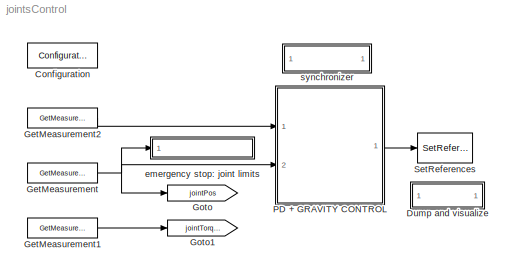
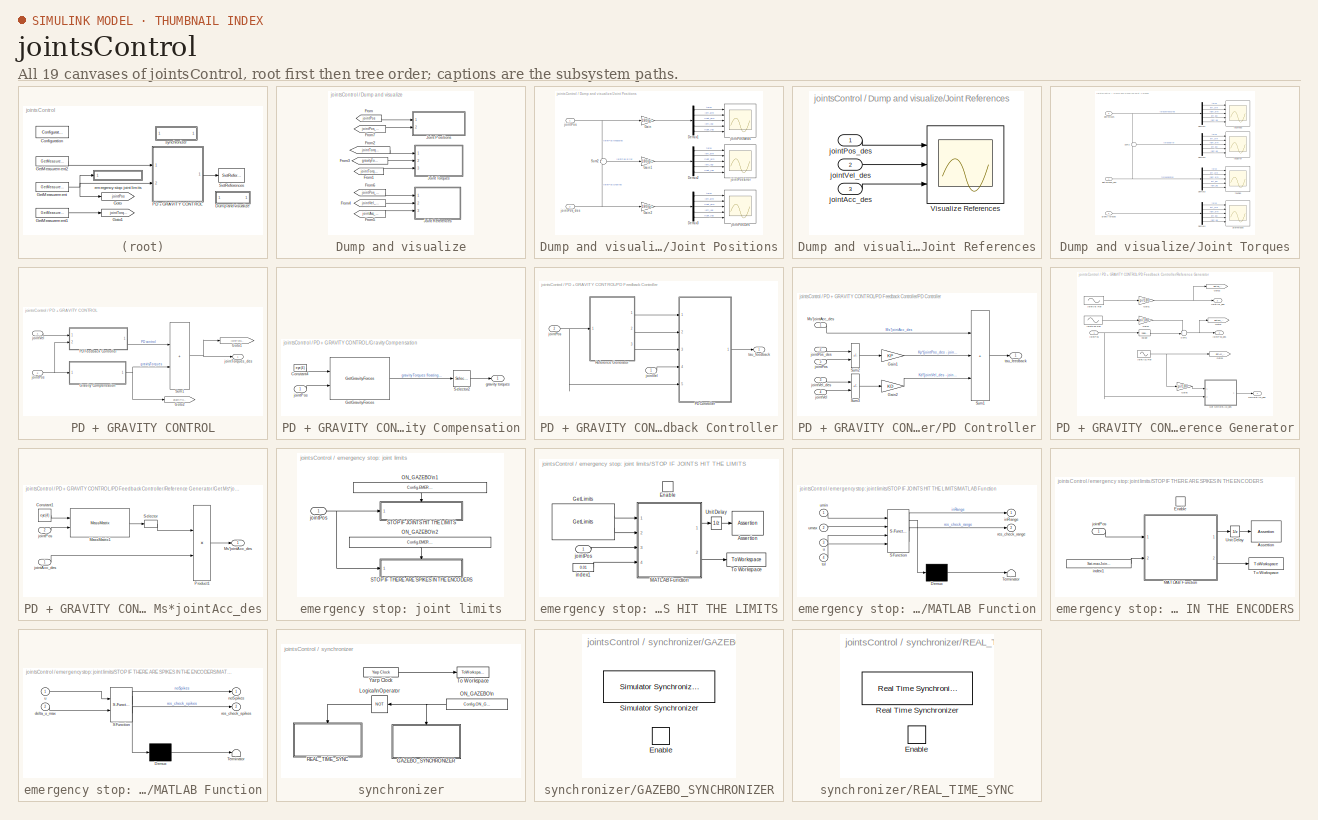
[diagram: thumbnail index - all 19 canvases of the model, root first then tree order]
MODEL jointsControl
KIND model
CONFIG InitFcn = %% initialize the simulation\ncd(fileparts(which(bdroot)));\ninitJointsControl;\n\n%% Try to edit the GUI (the user may have already closed it)\ntry\n\n    %% Update Start Button\n    set(sl_synch_handles.startButton,'Backgroundcolor',[0.0,1.0,0.0]);\n    set(sl_synch_handles.startButton,'Enable','on');\n\nend
CONFIG PostLoadFcn = %% Try to open the static GUI\ntry\n\n    staticGUI = simulinkStaticGUI;\n\nend
CONFIG StartFcn = %% Try to edit the GUI (the user may have already closed it)\ntry\n\n    %% Update Start Button\n    set(sl_synch_handles.startButton,'Backgroundcolor',[0.8,0.8,0.8]);\n    set(sl_synch_handles.startButton,'Enable','off');\n\n    %% Update Compile Button\n    set(sl_synch_handles.compileButton,'Backgroundcolor',[0.8,0.8,0.8]);\n    set(sl_synch_handles.compileButton,'Enable','off');\n\n    %% Upda...<+146ch>
CONFIG StopFcn = %% stop the simulation\ncd(fileparts(which(bdroot)));\nstopJointsControl;\n\n%% Try to edit the GUI (the user may have already closed it)\ntry\n\n    %% Update Start Button\n    if get(sl_synch_handles.checkbox_recompile, 'Value')  \n        set(sl_synch_handles.startButton,'Backgroundcolor',[0.0,1.0,0.0]);\n        set(sl_synch_handles.startButton,'Enable','on');\n    end\n\n    %% Update Compile...<+297ch>
BLOCK [Reference] Configuration  REF=WBToolboxLibrary/Utilities/Configuration
  ConfigObject = 'WBTConfigRobot'
  ConfigSource = Workspace
  ControlBoardsNames = {'left_arm','right_arm','torso'}
  ControlledJoints = {'l_elbow','l_shoulder_pitch','torso_roll'}
  GravityVector = [0,0,-9.81]
  LocalName = 'WBT'
  Ports = []
  RTWMemSecDataConstants = Inherit from model
  RTWMemSecDataInternal = Inherit from model
  RTWMemSecDataParameters = Inherit from model
  RTWMemSecFuncExecute = Inherit from model
  RTWMemSecFuncInitTerm = Inherit from model
  RobotName = 'icubSim'
  SID = 432
  SourceBlock = WBToolboxLibrary/Utilities/Configuration
  SourceProductName = WholeBodyToolbox
  UrdfFile = 'model.urdf'
BLOCK [SubSystem] Dump and visualize
  Ports = []
  RequestExecContextInheritance = off
  SID = 504
BLOCK [From] Dump and visualize/From
  GotoTag = jointPos
  SID = 615
  TagVisibility = global
BLOCK [From] Dump and visualize/From1
  GotoTag = jointTorques
  SID = 617
  TagVisibility = global
BLOCK [From] Dump and visualize/From2
  GotoTag = jointTorques_des
  SID = 620
  TagVisibility = global
BLOCK [From] Dump and visualize/From3
  GotoTag = gravityTorques
  SID = 623
  TagVisibility = global
BLOCK [From] Dump and visualize/From4
  GotoTag = jointVel_des
  SID = 628
  TagVisibility = global
BLOCK [From] Dump and visualize/From5
  GotoTag = jointAcc_des
  SID = 629
  TagVisibility = global
BLOCK [From] Dump and visualize/From6
  GotoTag = jointPos_des
  SID = 630
  TagVisibility = global
BLOCK [From] Dump and visualize/From7
  GotoTag = jointPos_des
  SID = 646
  TagVisibility = global
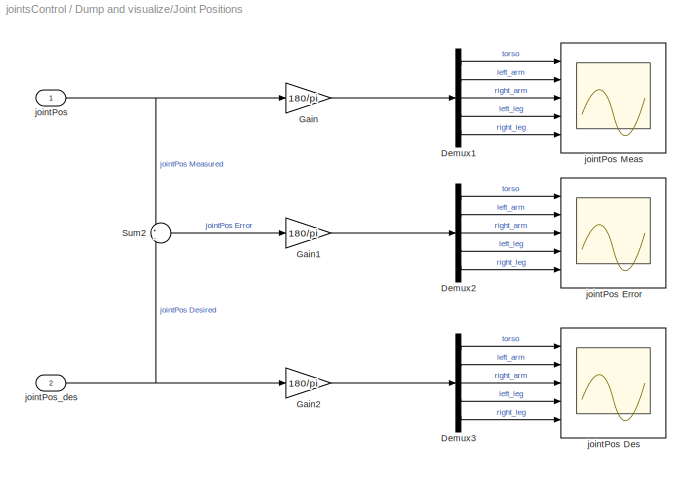
BLOCK [SubSystem] Dump and visualize/Joint Positions
  Ports = [2]
  RequestExecContextInheritance = off
  SID = 443
BLOCK [Demux] Dump and visualize/Joint Positions/Demux1
  Outputs = Config.numOfJointsForEachControlboard
  Ports = [1, 5]
  SID = 467
BLOCK [Demux] Dump and visualize/Joint Positions/Demux2
  Outputs = Config.numOfJointsForEachControlboard
  Ports = [1, 5]
  SID = 468
BLOCK [Demux] Dump and visualize/Joint Positions/Demux3
  Outputs = Config.numOfJointsForEachControlboard
  Ports = [1, 5]
  SID = 469
BLOCK [Gain] Dump and visualize/Joint Positions/Gain
  Gain = 180/pi
  SID = 456
BLOCK [Gain] Dump and visualize/Joint Positions/Gain1
  Gain = 180/pi
  SID = 457
BLOCK [Gain] Dump and visualize/Joint Positions/Gain2
  Gain = 180/pi
  SID = 458
BLOCK [Sum] Dump and visualize/Joint Positions/Sum2
  Inputs = +|-
  Ports = [2, 1]
  SID = 451
BLOCK [Inport] Dump and visualize/Joint Positions/jointPos
  SID = 496
BLOCK [Scope] Dump and visualize/Joint Positions/jointPos Des
  Floating = off
  NumInputPorts = 5
  Ports = [5]
  SID = 453
  ScopeSpecificationString = Simulink.scopes.TimeScopeBlockCfg('CurrentConfiguration', extmgr.ConfigurationSet(extmgr.Configuration('Core','General UI',true,'FigureColor',[0.156862745098039 0.156862745098039 0.156862745098039]),extmgr.Configuration('Core','Source UI',true),extmgr.Configuration('Sources','WiredSimulink',true,'DataLogging',true,'DataLoggingVariableName','jointPos_Desired_DATA','DataLoggingSaveFormat','Structure...<+10772ch>
BLOCK [Scope] Dump and visualize/Joint Positions/jointPos Error
  Floating = off
  NumInputPorts = 5
  Ports = [5]
  SID = 454
  ScopeSpecificationString = Simulink.scopes.TimeScopeBlockCfg('CurrentConfiguration', extmgr.ConfigurationSet(extmgr.Configuration('Core','General UI',true,'FigureColor',[0.156862745098039 0.156862745098039 0.156862745098039]),extmgr.Configuration('Core','Source UI',true),extmgr.Configuration('Sources','WiredSimulink',true,'DataLogging',true,'DataLoggingVariableName','jointPos_Error_DATA','DataLoggingSaveFormat','StructureWi...<+10766ch>
BLOCK [Scope] Dump and visualize/Joint Positions/jointPos Meas
  Floating = off
  NumInputPorts = 5
  Ports = [5]
  SID = 455
  ScopeSpecificationString = Simulink.scopes.TimeScopeBlockCfg('CurrentConfiguration', extmgr.ConfigurationSet(extmgr.Configuration('Core','General UI',true,'FigureColor',[0.156862745098039 0.156862745098039 0.156862745098039]),extmgr.Configuration('Core','Source UI',true),extmgr.Configuration('Sources','WiredSimulink',true,'DataLogging',true,'DataLoggingVariableName','jointPos_DATA','DataLoggingSaveFormat','StructureWithTime...<+10766ch>
BLOCK [Inport] Dump and visualize/Joint Positions/jointPos_des
  Port = 2
  SID = 444
BLOCK [SubSystem] Dump and visualize/Joint References
  Ports = [3]
  RequestExecContextInheritance = off
  SID = 633
BLOCK [Scope] Dump and visualize/Joint References/Visualize References
  Floating = off
  NumInputPorts = 3
  Ports = [3]
  SID = 399
  ScopeSpecificationString = Simulink.scopes.TimeScopeBlockCfg('CurrentConfiguration', extmgr.ConfigurationSet(extmgr.Configuration('Core','General UI',true),extmgr.Configuration('Core','Source UI',true),extmgr.Configuration('Sources','WiredSimulink',true,'DataLoggingVariableName','jointReferences_DATA','DataLoggingSaveFormat','StructureWithTime','DataLoggingDecimation','1','DataLoggingDecimateData',true,'DataLogging',true),e...<+3135ch>
BLOCK [Inport] Dump and visualize/Joint References/jointAcc_des
  Port = 3
  SID = 636
BLOCK [Inport] Dump and visualize/Joint References/jointPos_des
  SID = 634
BLOCK [Inport] Dump and visualize/Joint References/jointVel_des
  Port = 2
  SID = 635
BLOCK [SubSystem] Dump and visualize/Joint Torques
  Ports = [3]
  RequestExecContextInheritance = off
  SID = 315
BLOCK [Demux] Dump and visualize/Joint Torques/Demux1
  Outputs = Config.numOfJointsForEachControlboard
  Ports = [1, 5]
  SID = 463
BLOCK [Demux] Dump and visualize/Joint Torques/Demux2
  Outputs = Config.numOfJointsForEachControlboard
  Ports = [1, 5]
  SID = 464
BLOCK [Demux] Dump and visualize/Joint Torques/Demux3
  Outputs = Config.numOfJointsForEachControlboard
  Ports = [1, 5]
  SID = 465
BLOCK [Demux] Dump and visualize/Joint Torques/Demux4
  Outputs = Config.numOfJointsForEachControlboard
  Ports = [1, 5]
  SID = 466
BLOCK [Sum] Dump and visualize/Joint Torques/Sum2
  Inputs = +|-
  Ports = [2, 1]
  SID = 49
BLOCK [Scope] Dump and visualize/Joint Torques/gravTorques
  Floating = off
  NumInputPorts = 5
  Ports = [5]
  SID = 419
  ScopeSpecificationString = Simulink.scopes.TimeScopeBlockCfg('CurrentConfiguration', extmgr.ConfigurationSet(extmgr.Configuration('Core','General UI',true,'FigureColor',[0.156862745098039 0.156862745098039 0.156862745098039]),extmgr.Configuration('Core','Source UI',true),extmgr.Configuration('Sources','WiredSimulink',true,'DataLoggingVariableName','gravTorque_DATA','DataLoggingSaveFormat','StructureWithTime','DataLoggingDec...<+10762ch>
BLOCK [Inport] Dump and visualize/Joint Torques/gravity torques
  Port = 2
  SID = 319
BLOCK [Inport] Dump and visualize/Joint Torques/jointTorques
  Port = 3
  SID = 495
BLOCK [Inport] Dump and visualize/Joint Torques/jointTorques_des
  SID = 318
BLOCK [Scope] Dump and visualize/Joint Torques/tauDes
  Floating = off
  NumInputPorts = 5
  Ports = [5]
  SID = 417
  ScopeSpecificationString = Simulink.scopes.TimeScopeBlockCfg('CurrentConfiguration', extmgr.ConfigurationSet(extmgr.Configuration('Core','General UI',true,'FigureColor',[0.156862745098039 0.156862745098039 0.156862745098039]),extmgr.Configuration('Core','Source UI',true),extmgr.Configuration('Sources','WiredSimulink',true,'DataLogging',true,'DataLoggingVariableName','tauDesired_DATA','DataLoggingSaveFormat','StructureWithTi...<+10762ch>
BLOCK [Scope] Dump and visualize/Joint Torques/tauError
  Floating = off
  NumInputPorts = 5
  Ports = [5]
  SID = 415
  ScopeSpecificationString = Simulink.scopes.TimeScopeBlockCfg('CurrentConfiguration', extmgr.ConfigurationSet(extmgr.Configuration('Core','General UI',true,'FigureColor',[0.156862745098039 0.156862745098039 0.156862745098039]),extmgr.Configuration('Core','Source UI',true),extmgr.Configuration('Sources','WiredSimulink',true,'DataLogging',true,'DataLoggingVariableName','tauError_DATA','DataLoggingSaveFormat','StructureWithTime...<+10760ch>
BLOCK [Scope] Dump and visualize/Joint Torques/tauMeas
  Floating = off
  NumInputPorts = 5
  Ports = [5]
  SID = 413
  ScopeSpecificationString = Simulink.scopes.TimeScopeBlockCfg('CurrentConfiguration', extmgr.ConfigurationSet(extmgr.Configuration('Core','General UI',true,'FigureColor',[0.156862745098039 0.156862745098039 0.156862745098039]),extmgr.Configuration('Core','Source UI',true),extmgr.Configuration('Sources','WiredSimulink',true,'DataLogging',true,'DataLoggingVariableName','tauMeasured_DATA','DataLoggingSaveFormat','StructureWithT...<+10763ch>
BLOCK [Reference] GetMeasurement  REF=WBToolboxLibrary/States/GetMeasurement
  Ports = [0, 1]
  RTWMemSecDataConstants = Inherit from model
  RTWMemSecDataInternal = Inherit from model
  RTWMemSecDataParameters = Inherit from model
  RTWMemSecFuncExecute = Inherit from model
  RTWMemSecFuncInitTerm = Inherit from model
  SID = 431
  SourceBlock = WBToolboxLibrary/States/GetMeasurement
  SourceProductName = WholeBodyToolbox
  SourceType = GetMeasurement
  measuredType = Joints Position
BLOCK [Reference] GetMeasurement1  REF=WBToolboxLibrary/States/GetMeasurement
  Ports = [0, 1]
  RTWMemSecDataConstants = Inherit from model
  RTWMemSecDataInternal = Inherit from model
  RTWMemSecDataParameters = Inherit from model
  RTWMemSecFuncExecute = Inherit from model
  RTWMemSecFuncInitTerm = Inherit from model
  SID = 434
  SourceBlock = WBToolboxLibrary/States/GetMeasurement
  SourceProductName = WholeBodyToolbox
  SourceType = GetMeasurement
  measuredType = Joints Torque
BLOCK [Reference] GetMeasurement2  REF=WBToolboxLibrary/States/GetMeasurement
  Ports = [0, 1]
  RTWMemSecDataConstants = Inherit from model
  RTWMemSecDataInternal = Inherit from model
  RTWMemSecDataParameters = Inherit from model
  RTWMemSecFuncExecute = Inherit from model
  RTWMemSecFuncInitTerm = Inherit from model
  SID = 433
  SourceBlock = WBToolboxLibrary/States/GetMeasurement
  SourceProductName = WholeBodyToolbox
  SourceType = GetMeasurement
  measuredType = Joints Velocity
BLOCK [Goto] Goto
  GotoTag = jointPos
  SID = 614
  TagVisibility = global
BLOCK [Goto] Goto1
  GotoTag = jointTorques
  SID = 616
  TagVisibility = global
BLOCK [SubSystem] PD + GRAVITY CONTROL
  Ports = [2, 1]
  RequestExecContextInheritance = off
  SID = 498
BLOCK [Goto] PD + GRAVITY CONTROL/Goto1
  GotoTag = jointTorques_des
  SID = 619
  TagVisibility = global
BLOCK [Goto] PD + GRAVITY CONTROL/Goto2
  GotoTag = gravityTorques
  SID = 622
  TagVisibility = global
BLOCK [SubSystem] PD + GRAVITY CONTROL/Gravity Compensation
  Ports = [1, 1]
  RequestExecContextInheritance = off
  SID = 226
BLOCK [Constant] PD + GRAVITY CONTROL/Gravity Compensation/Constant4
  SID = 425
  Value = eye(4)
BLOCK [Reference] PD + GRAVITY CONTROL/Gravity Compensation/GetGravityForces  REF=WBToolboxLibrary/Model/Dynamics/GetGravityForces
  Ports = [2, 1]
  RTWMemSecDataConstants = Inherit from model
  RTWMemSecDataInternal = Inherit from model
  RTWMemSecDataParameters = Inherit from model
  RTWMemSecFuncExecute = Inherit from model
  RTWMemSecFuncInitTerm = Inherit from model
  SID = 430
  SourceBlock = WBToolboxLibrary/Model/Dynamics/GetGravityForces
  SourceProductName = WholeBodyToolbox
  SourceType = Gravity bias
BLOCK [Selector] PD + GRAVITY CONTROL/Gravity Compensation/Selector2
  IndexOptions = Index vector (dialog)
  Indices = [7:ROBOT_DOF+6]
  InputPortWidth = ROBOT_DOF+6
  OutputSizes = 1
  Ports = [1, 1]
  SID = 428
BLOCK [Outport] PD + GRAVITY CONTROL/Gravity Compensation/gravity torques
  SID = 429
  VectorParamsAs1DForOutWhenUnconnected = off
BLOCK [Inport] PD + GRAVITY CONTROL/Gravity Compensation/jointPos
  SID = 423
BLOCK [SubSystem] PD + GRAVITY CONTROL/PD Feedback Controller
  Ports = [2, 1]
  RequestExecContextInheritance = off
  SID = 310
BLOCK [SubSystem] PD + GRAVITY CONTROL/PD Feedback Controller/PD Controller
  Ports = [5, 1]
  RequestExecContextInheritance = off
  SID = 637
BLOCK [Gain] PD + GRAVITY CONTROL/PD Feedback Controller/PD Controller/Gain1
  Gain = KP
  Multiplication = Matrix(K*u)
  SID = 14
BLOCK [Gain] PD + GRAVITY CONTROL/PD Feedback Controller/PD Controller/Gain2
  Gain = KD
  Multiplication = Matrix(K*u)
  SID = 20
BLOCK [Inport] PD + GRAVITY CONTROL/PD Feedback Controller/PD Controller/Ms*jointAcc_des
  SID = 641
BLOCK [Sum] PD + GRAVITY CONTROL/PD Feedback Controller/PD Controller/Sum1
  IconShape = rectangular
  Inputs = +++
  Ports = [3, 1]
  SID = 19
BLOCK [Sum] PD + GRAVITY CONTROL/PD Feedback Controller/PD Controller/Sum2
  IconShape = rectangular
  Inputs = +-
  Ports = [2, 1]
  SID = 644
BLOCK [Sum] PD + GRAVITY CONTROL/PD Feedback Controller/PD Controller/Sum3
  IconShape = rectangular
  Inputs = +-
  Ports = [2, 1]
  SID = 645
BLOCK [Inport] PD + GRAVITY CONTROL/PD Feedback Controller/PD Controller/jointPos
  Port = 5
  SID = 639
BLOCK [Inport] PD + GRAVITY CONTROL/PD Feedback Controller/PD Controller/jointPos_des
  Port = 2
  SID = 643
BLOCK [Inport] PD + GRAVITY CONTROL/PD Feedback Controller/PD Controller/jointVel
  Port = 4
  SID = 638
BLOCK [Inport] PD + GRAVITY CONTROL/PD Feedback Controller/PD Controller/jointVel_des
  Port = 3
  SID = 642
BLOCK [Outport] PD + GRAVITY CONTROL/PD Feedback Controller/PD Controller/tau_feedback
  SID = 640
  VectorParamsAs1DForOutWhenUnconnected = off
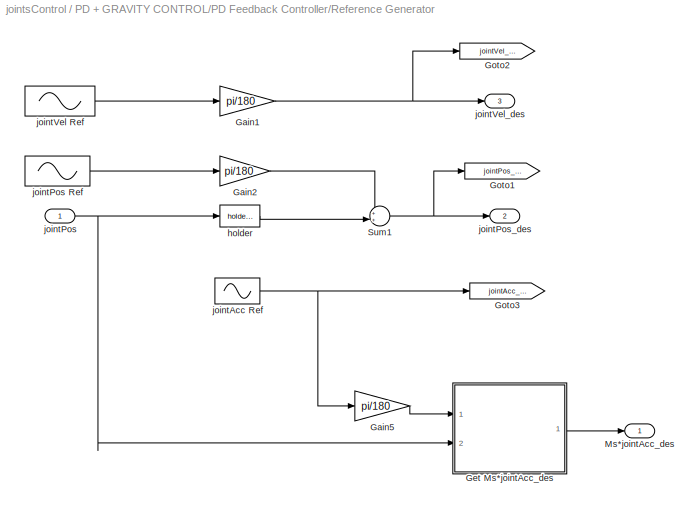
BLOCK [SubSystem] PD + GRAVITY CONTROL/PD Feedback Controller/Reference Generator
  Ports = [1, 3]
  RequestExecContextInheritance = off
  SID = 88
BLOCK [Gain] PD + GRAVITY CONTROL/PD Feedback Controller/Reference Generator/Gain1
  Gain = pi/180
  SID = 420
BLOCK [Gain] PD + GRAVITY CONTROL/PD Feedback Controller/Reference Generator/Gain2
  Gain = pi/180
  SID = 421
BLOCK [Gain] PD + GRAVITY CONTROL/PD Feedback Controller/Reference Generator/Gain5
  Gain = pi/180
  SID = 386
BLOCK [SubSystem] PD + GRAVITY CONTROL/PD Feedback Controller/Reference Generator/Get Ms*jointAcc_des
  Ports = [2, 1]
  RequestExecContextInheritance = off
  SID = 491
BLOCK [Constant] PD + GRAVITY CONTROL/PD Feedback Controller/Reference Generator/Get Ms*jointAcc_des/Constant1
  SID = 385
  Value = eye(4)
BLOCK [Reference] PD + GRAVITY CONTROL/PD Feedback Controller/Reference Generator/Get Ms*jointAcc_des/MassMatrix1  REF=WBToolboxLibrary/Model/Dynamics/MassMatrix
  Ports = [2, 1]
  RTWMemSecDataConstants = Inherit from model
  RTWMemSecDataInternal = Inherit from model
  RTWMemSecDataParameters = Inherit from model
  RTWMemSecFuncExecute = Inherit from model
  RTWMemSecFuncInitTerm = Inherit from model
  SID = 391
  SourceBlock = WBToolboxLibrary/Model/Dynamics/MassMatrix
  SourceProductName = WholeBodyToolbox
  SourceType = MassMatrix
BLOCK [Outport] PD + GRAVITY CONTROL/PD Feedback Controller/Reference Generator/Get Ms*jointAcc_des/Ms*jointAcc_des
  SID = 494
  VectorParamsAs1DForOutWhenUnconnected = off
BLOCK [Product] PD + GRAVITY CONTROL/PD Feedback Controller/Reference Generator/Get Ms*jointAcc_des/Product1
  Multiplication = Matrix(*)
  Ports = [2, 1]
  SID = 392
BLOCK [Selector] PD + GRAVITY CONTROL/PD Feedback Controller/Reference Generator/Get Ms*jointAcc_des/Selector
  IndexOptions = Index vector (dialog),Index vector (dialog)
  Indices = [7:ROBOT_DOF+6],[7:ROBOT_DOF+6]
  InputPortWidth = 3
  NumberOfDimensions = 2
  OutputSizes = 1,1
  Ports = [1, 1]
  SID = 422
BLOCK [Inport] PD + GRAVITY CONTROL/PD Feedback Controller/Reference Generator/Get Ms*jointAcc_des/jointAcc_des
  SID = 493
BLOCK [Inport] PD + GRAVITY CONTROL/PD Feedback Controller/Reference Generator/Get Ms*jointAcc_des/jointPos
  Port = 2
  SID = 492
BLOCK [Goto] PD + GRAVITY CONTROL/PD Feedback Controller/Reference Generator/Goto1
  GotoTag = jointPos_des
  SID = 625
  TagVisibility = global
BLOCK [Goto] PD + GRAVITY CONTROL/PD Feedback Controller/Reference Generator/Goto2
  GotoTag = jointVel_des
  SID = 626
  TagVisibility = global
BLOCK [Goto] PD + GRAVITY CONTROL/PD Feedback Controller/Reference Generator/Goto3
  GotoTag = jointAcc_des
  SID = 627
  TagVisibility = global
BLOCK [Outport] PD + GRAVITY CONTROL/PD Feedback Controller/Reference Generator/Ms*jointAcc_des
  SID = 400
  VectorParamsAs1DForOutWhenUnconnected = off
BLOCK [Sum] PD + GRAVITY CONTROL/PD Feedback Controller/Reference Generator/Sum1
  Inputs = ++|
  Ports = [2, 1]
  SID = 396
BLOCK [Reference] PD + GRAVITY CONTROL/PD Feedback Controller/Reference Generator/holder  REF=WBToolboxLibrary/Utilities/holder\n
  Ports = [1, 1]
  RTWMemSecDataConstants = Inherit from model
  RTWMemSecDataInternal = Inherit from model
  RTWMemSecDataParameters = Inherit from model
  RTWMemSecFuncExecute = Inherit from model
  RTWMemSecFuncInitTerm = Inherit from model
  SID = 398
  SourceBlock = WBToolboxLibrary/Utilities/holder\n
  SourceProductName = WholeBodyToolbox
  SourceType = Holder
BLOCK [Sin] PD + GRAVITY CONTROL/PD Feedback Controller/Reference Generator/jointAcc Ref
  Amplitude = -Ref.Amplitude.*(Ref.Frequency.*2.*pi).^2
  Frequency = Ref.Frequency.*2.*pi
  Ports = [0, 1]
  SID = 395
  SampleTime = 0
BLOCK [Inport] PD + GRAVITY CONTROL/PD Feedback Controller/Reference Generator/jointPos
  SID = 384
BLOCK [Sin] PD + GRAVITY CONTROL/PD Feedback Controller/Reference Generator/jointPos Ref
  Amplitude = Ref.Amplitude
  Frequency = Ref.Frequency.*2.*pi
  Ports = [0, 1]
  SID = 393
  SampleTime = 0
BLOCK [Outport] PD + GRAVITY CONTROL/PD Feedback Controller/Reference Generator/jointPos_des
  Port = 2
  SID = 402
  VectorParamsAs1DForOutWhenUnconnected = off
BLOCK [Sin] PD + GRAVITY CONTROL/PD Feedback Controller/Reference Generator/jointVel Ref
  Amplitude = Ref.Amplitude.*Ref.Frequency.*2.*pi
  Frequency = Ref.Frequency.*2.*pi
  Phase = pi/2
  Ports = [0, 1]
  SID = 394
  SampleTime = 0
BLOCK [Outport] PD + GRAVITY CONTROL/PD Feedback Controller/Reference Generator/jointVel_des
  Port = 3
  SID = 489
  VectorParamsAs1DForOutWhenUnconnected = off
BLOCK [Inport] PD + GRAVITY CONTROL/PD Feedback Controller/jointPos
  Port = 2
  SID = 311
BLOCK [Inport] PD + GRAVITY CONTROL/PD Feedback Controller/jointVel
  SID = 497
BLOCK [Outport] PD + GRAVITY CONTROL/PD Feedback Controller/tau_feedback
  SID = 313
  VectorParamsAs1DForOutWhenUnconnected = off
BLOCK [Sum] PD + GRAVITY CONTROL/Sum1
  IconShape = rectangular
  Ports = [2, 1]
  SID = 314
BLOCK [Inport] PD + GRAVITY CONTROL/jointPos
  Port = 2
  SID = 501
BLOCK [Outport] PD + GRAVITY CONTROL/jointTorques_des
  SID = 503
  VectorParamsAs1DForOutWhenUnconnected = off
BLOCK [Inport] PD + GRAVITY CONTROL/jointVel
  SID = 500
BLOCK [Reference] SetReferences  REF=WBToolboxLibrary/Actuators/SetReferences
  Ports = [1]
  RTWMemSecDataConstants = Inherit from model
  RTWMemSecDataInternal = Inherit from model
  RTWMemSecDataParameters = Inherit from model
  RTWMemSecFuncExecute = Inherit from model
  RTWMemSecFuncInitTerm = Inherit from model
  SID = 137
  SourceBlock = WBToolboxLibrary/Actuators/SetReferences
  SourceProductName = WholeBodyToolbox
  SourceType = SetReferences
  controlType = Torque
  refAcceleration = 1000000*(pi/180)
  refSpeed = 50
BLOCK [SubSystem] emergency stop: joint limits
  Ports = [1]
  RequestExecContextInheritance = off
  SID = 687
BLOCK [Constant] emergency stop: joint limits/ON_GAZEBO\n1
  SID = 689
  Value = Config.EMERGENCY_STOP_WITH_JOINTS_LIMITS
BLOCK [Constant] emergency stop: joint limits/ON_GAZEBO\n2
  SID = 690
  Value = Config.EMERGENCY_STOP_WITH_ENCODER_SPIKES
BLOCK [SubSystem] emergency stop: joint limits/STOP IF JOINTS HIT THE LIMITS
  Ports = [1, 0, 1]
  RequestExecContextInheritance = off
  SID = 691
BLOCK [Assertion] emergency stop: joint limits/STOP IF JOINTS HIT THE LIMITS/Assertion
  SID = 694
BLOCK [EnablePort] emergency stop: joint limits/STOP IF JOINTS HIT THE LIMITS/Enable
  Ports = []
  SID = 693
BLOCK [Reference] emergency stop: joint limits/STOP IF JOINTS HIT THE LIMITS/GetLimits  REF=WBToolboxLibrary/States/GetLimits
  Ports = [0, 2]
  RTWMemSecDataConstants = Inherit from model
  RTWMemSecDataInternal = Inherit from model
  RTWMemSecDataParameters = Inherit from model
  RTWMemSecFuncExecute = Inherit from model
  RTWMemSecFuncInitTerm = Inherit from model
  SID = 695
  SourceBlock = WBToolboxLibrary/States/GetLimits
  SourceProductName = WholeBodyToolbox
  SourceType = GetLimits
  limitsSource = ControlBoard
  limitsType = Position
BLOCK [SubSystem] emergency stop: joint limits/STOP IF JOINTS HIT THE LIMITS/MATLAB Function
  ErrorFcn = Stateflow.Translate.translate
  PermitHierarchicalResolution = ExplicitOnly
  Ports = [4, 2]
  RequestExecContextInheritance = off
  SFBlockType = MATLAB Function
  SID = 696
  TreatAsAtomicUnit = on
BLOCK [Demux] emergency stop: joint limits/STOP IF JOINTS HIT THE LIMITS/MATLAB Function/ Demux 
  Outputs = 1
  Ports = [1, 1]
  SID = 696::3809
BLOCK [S-Function] emergency stop: joint limits/STOP IF JOINTS HIT THE LIMITS/MATLAB Function/ SFunction 
  EnableBusSupport = off
  FunctionName = sf_sfun
  PortCounts = [4 3]
  Ports = [4, 3]
  SFcnIsStateOwnerBlock = off
  SFunctionDeploymentMode = off
  SID = 696::3808
  Tag = Stateflow S-Function 18
BLOCK [Terminator] emergency stop: joint limits/STOP IF JOINTS HIT THE LIMITS/MATLAB Function/ Terminator 
  SID = 696::3810
BLOCK [Outport] emergency stop: joint limits/STOP IF JOINTS HIT THE LIMITS/MATLAB Function/inRange
  SID = 696::5
  VectorParamsAs1DForOutWhenUnconnected = off
BLOCK [Outport] emergency stop: joint limits/STOP IF JOINTS HIT THE LIMITS/MATLAB Function/res_check_range
  Port = 2
  SID = 696::3789
BLOCK [Inport] emergency stop: joint limits/STOP IF JOINTS HIT THE LIMITS/MATLAB Function/tol
  Port = 4
  SID = 696::20
BLOCK [Inport] emergency stop: joint limits/STOP IF JOINTS HIT THE LIMITS/MATLAB Function/u
  Port = 3
  SID = 696::1
BLOCK [Inport] emergency stop: joint limits/STOP IF JOINTS HIT THE LIMITS/MATLAB Function/umax
  Port = 2
  SID = 696::19
BLOCK [Inport] emergency stop: joint limits/STOP IF JOINTS HIT THE LIMITS/MATLAB Function/umin
  SID = 696::18
BLOCK [ToWorkspace] emergency stop: joint limits/STOP IF JOINTS HIT THE LIMITS/To Workspace
  FixptAsFi = on
  MaxDataPoints = inf
  Ports = [1]
  SID = 697
  SampleTime = Config.tStep
  SaveFormat = Structure With Time
  VariableName = res_check_range
BLOCK [UnitDelay] emergency stop: joint limits/STOP IF JOINTS HIT THE LIMITS/Unit Delay
  HasFrameUpgradeWarning = on
  InitialCondition = 1
  SID = 698
  SampleTime = Config.tStep
BLOCK [Constant] emergency stop: joint limits/STOP IF JOINTS HIT THE LIMITS/index1
  SID = 699
  Value = 0.01
  VectorParams1D = off
BLOCK [Inport] emergency stop: joint limits/STOP IF JOINTS HIT THE LIMITS/jointPos
  SID = 692
BLOCK [SubSystem] emergency stop: joint limits/STOP IF THERE ARE SPIKES IN THE ENCODERS
  Ports = [1, 0, 1]
  RequestExecContextInheritance = off
  SID = 700
BLOCK [Assertion] emergency stop: joint limits/STOP IF THERE ARE SPIKES IN THE ENCODERS/Assertion
  SID = 703
BLOCK [EnablePort] emergency stop: joint limits/STOP IF THERE ARE SPIKES IN THE ENCODERS/Enable
  Ports = []
  SID = 702
BLOCK [SubSystem] emergency stop: joint limits/STOP IF THERE ARE SPIKES IN THE ENCODERS/MATLAB Function
  ErrorFcn = Stateflow.Translate.translate
  PermitHierarchicalResolution = ExplicitOnly
  Ports = [2, 2]
  RequestExecContextInheritance = off
  SFBlockType = MATLAB Function
  SID = 704
  TreatAsAtomicUnit = on
BLOCK [Demux] emergency stop: joint limits/STOP IF THERE ARE SPIKES IN THE ENCODERS/MATLAB Function/ Demux 
  Outputs = 1
  Ports = [1, 1]
  SID = 704::3809
BLOCK [S-Function] emergency stop: joint limits/STOP IF THERE ARE SPIKES IN THE ENCODERS/MATLAB Function/ SFunction 
  EnableBusSupport = off
  FunctionName = sf_sfun
  PortCounts = [2 3]
  Ports = [2, 3]
  SFcnIsStateOwnerBlock = off
  SFunctionDeploymentMode = off
  SID = 704::3808
  Tag = Stateflow S-Function 14
BLOCK [Terminator] emergency stop: joint limits/STOP IF THERE ARE SPIKES IN THE ENCODERS/MATLAB Function/ Terminator 
  SID = 704::3810
BLOCK [Inport] emergency stop: joint limits/STOP IF THERE ARE SPIKES IN THE ENCODERS/MATLAB Function/delta_u_max
  Port = 2
  SID = 704::18
BLOCK [Outport] emergency stop: joint limits/STOP IF THERE ARE SPIKES IN THE ENCODERS/MATLAB Function/noSpikes
  SID = 704::5
  VectorParamsAs1DForOutWhenUnconnected = off
BLOCK [Outport] emergency stop: joint limits/STOP IF THERE ARE SPIKES IN THE ENCODERS/MATLAB Function/res_check_spikes
  Port = 2
  SID = 704::3789
BLOCK [Inport] emergency stop: joint limits/STOP IF THERE ARE SPIKES IN THE ENCODERS/MATLAB Function/u
  SID = 704::1
BLOCK [ToWorkspace] emergency stop: joint limits/STOP IF THERE ARE SPIKES IN THE ENCODERS/To Workspace
  FixptAsFi = on
  MaxDataPoints = inf
  Ports = [1]
  SID = 705
  SampleTime = Config.tStep
  SaveFormat = Structure With Time
  VariableName = res_check_spikes
BLOCK [UnitDelay] emergency stop: joint limits/STOP IF THERE ARE SPIKES IN THE ENCODERS/Unit Delay
  HasFrameUpgradeWarning = on
  InitialCondition = 1
  SID = 706
  SampleTime = Config.tStep
BLOCK [Constant] emergency stop: joint limits/STOP IF THERE ARE SPIKES IN THE ENCODERS/index1
  SID = 707
  Value = Sat.maxJointsPositionDelta
  VectorParams1D = off
BLOCK [Inport] emergency stop: joint limits/STOP IF THERE ARE SPIKES IN THE ENCODERS/jointPos
  SID = 701
BLOCK [Inport] emergency stop: joint limits/jointPos
  SID = 688
BLOCK [SubSystem] synchronizer
  Ports = []
  RequestExecContextInheritance = off
  SID = 301
BLOCK [SubSystem] synchronizer/GAZEBO_SYNCHRONIZER
  Ports = [0, 0, 1]
  RequestExecContextInheritance = off
  SID = 302
BLOCK [EnablePort] synchronizer/GAZEBO_SYNCHRONIZER/Enable
  Ports = []
  SID = 303
BLOCK [Reference] synchronizer/GAZEBO_SYNCHRONIZER/Simulator Synchronizer  REF=WBToolboxLibrary/Utilities/Simulator Synchronizer
  MultiThreadCoSim = auto
  Ports = []
  SID = 304
  SourceBlock = WBToolboxLibrary/Utilities/Simulator Synchronizer
  SourceProductName = WholeBodyToolbox
  SourceType = Simulator Synchronizer
  clientPortName = '/WBT_synchronizer/rpc:o'
  period = Config.tStep
  serverPortName = '/clock/rpc'
BLOCK [Logic] synchronizer/Logical\nOperator
  AllPortsSameDT = off
  Operator = NOT
  OutDataTypeStr = boolean
  Ports = [1, 1]
  SID = 305
BLOCK [Constant] synchronizer/ON_GAZEBO\n
  SID = 306
  Value = Config.ON_GAZEBO
BLOCK [SubSystem] synchronizer/REAL_TIME_SYNC
  Ports = [0, 0, 1]
  RequestExecContextInheritance = off
  SID = 307
BLOCK [EnablePort] synchronizer/REAL_TIME_SYNC/Enable
  Ports = []
  SID = 308
BLOCK [Reference] synchronizer/REAL_TIME_SYNC/Real Time Synchronizer  REF=WBToolboxLibrary/Utilities/Real Time Synchronizer
  MultiThreadCoSim = auto
  Ports = []
  SID = 309
  SourceBlock = WBToolboxLibrary/Utilities/Real Time Synchronizer
  SourceProductName = WholeBodyToolbox
  SourceType = Real Time Synchronizer
  period = Config.tStep
BLOCK [ToWorkspace] synchronizer/To Workspace
  FixptAsFi = on
  MaxDataPoints = inf
  Ports = [1]
  SID = 647
  SampleTime = -1
  SaveFormat = Structure With Time
  VariableName = yarp_time
BLOCK [Reference] synchronizer/Yarp Clock  REF=WBToolboxLibrary/Utilities/Yarp Clock
  MultiThreadCoSim = auto
  Ports = [0, 1]
  SID = 648
  SourceBlock = WBToolboxLibrary/Utilities/Yarp Clock
  SourceProductName = WholeBodyToolbox
  SourceType = YARP Clock
LINE Dump and visualize/From1:1 -> Dump and visualize/Joint Torques:3
LINE Dump and visualize/From2:1 -> Dump and visualize/Joint Torques:1
LINE Dump and visualize/From3:1 -> Dump and visualize/Joint Torques:2
LINE Dump and visualize/From4:1 -> Dump and visualize/Joint References:2
LINE Dump and visualize/From5:1 -> Dump and visualize/Joint References:3
LINE Dump and visualize/From6:1 -> Dump and visualize/Joint References:1
LINE Dump and visualize/From7:1 -> Dump and visualize/Joint Positions:2
LINE Dump and visualize/From:1 -> Dump and visualize/Joint Positions:1
LINE Dump and visualize/Joint Positions/Demux1:1 -> Dump and visualize/Joint Positions/jointPos Meas:1
LINE Dump and visualize/Joint Positions/Demux1:2 -> Dump and visualize/Joint Positions/jointPos Meas:2
LINE Dump and visualize/Joint Positions/Demux1:3 -> Dump and visualize/Joint Positions/jointPos Meas:3
LINE Dump and visualize/Joint Positions/Demux1:4 -> Dump and visualize/Joint Positions/jointPos Meas:4
LINE Dump and visualize/Joint Positions/Demux1:5 -> Dump and visualize/Joint Positions/jointPos Meas:5
LINE Dump and visualize/Joint Positions/Demux2:1 -> Dump and visualize/Joint Positions/jointPos Error:1
LINE Dump and visualize/Joint Positions/Demux2:2 -> Dump and visualize/Joint Positions/jointPos Error:2
LINE Dump and visualize/Joint Positions/Demux2:3 -> Dump and visualize/Joint Positions/jointPos Error:3
LINE Dump and visualize/Joint Positions/Demux2:4 -> Dump and visualize/Joint Positions/jointPos Error:4
LINE Dump and visualize/Joint Positions/Demux2:5 -> Dump and visualize/Joint Positions/jointPos Error:5
LINE Dump and visualize/Joint Positions/Demux3:1 -> Dump and visualize/Joint Positions/jointPos Des:1
LINE Dump and visualize/Joint Positions/Demux3:2 -> Dump and visualize/Joint Positions/jointPos Des:2
LINE Dump and visualize/Joint Positions/Demux3:3 -> Dump and visualize/Joint Positions/jointPos Des:3
LINE Dump and visualize/Joint Positions/Demux3:4 -> Dump and visualize/Joint Positions/jointPos Des:4
LINE Dump and visualize/Joint Positions/Demux3:5 -> Dump and visualize/Joint Positions/jointPos Des:5
LINE Dump and visualize/Joint Positions/Gain1:1 -> Dump and visualize/Joint Positions/Demux2:1
LINE Dump and visualize/Joint Positions/Gain2:1 -> Dump and visualize/Joint Positions/Demux3:1
LINE Dump and visualize/Joint Positions/Gain:1 -> Dump and visualize/Joint Positions/Demux1:1
LINE Dump and visualize/Joint Positions/Sum2:1 -> Dump and visualize/Joint Positions/Gain1:1
NET Dump and visualize/Joint Positions/jointPos:1 -> Dump and visualize/Joint Positions/Gain:1, Dump and visualize/Joint Positions/Sum2:1
NET Dump and visualize/Joint Positions/jointPos_des:1 -> Dump and visualize/Joint Positions/Gain2:1, Dump and visualize/Joint Positions/Sum2:2
LINE Dump and visualize/Joint References/jointAcc_des:1 -> Dump and visualize/Joint References/Visualize References:3
LINE Dump and visualize/Joint References/jointPos_des:1 -> Dump and visualize/Joint References/Visualize References:1
LINE Dump and visualize/Joint References/jointVel_des:1 -> Dump and visualize/Joint References/Visualize References:2
LINE Dump and visualize/Joint Torques/Demux1:1 -> Dump and visualize/Joint Torques/tauMeas:1
LINE Dump and visualize/Joint Torques/Demux1:2 -> Dump and visualize/Joint Torques/tauMeas:2
LINE Dump and visualize/Joint Torques/Demux1:3 -> Dump and visualize/Joint Torques/tauMeas:3
LINE Dump and visualize/Joint Torques/Demux1:4 -> Dump and visualize/Joint Torques/tauMeas:4
LINE Dump and visualize/Joint Torques/Demux1:5 -> Dump and visualize/Joint Torques/tauMeas:5
LINE Dump and visualize/Joint Torques/Demux2:1 -> Dump and visualize/Joint Torques/tauError:1
LINE Dump and visualize/Joint Torques/Demux2:2 -> Dump and visualize/Joint Torques/tauError:2
LINE Dump and visualize/Joint Torques/Demux2:3 -> Dump and visualize/Joint Torques/tauError:3
LINE Dump and visualize/Joint Torques/Demux2:4 -> Dump and visualize/Joint Torques/tauError:4
LINE Dump and visualize/Joint Torques/Demux2:5 -> Dump and visualize/Joint Torques/tauError:5
LINE Dump and visualize/Joint Torques/Demux3:1 -> Dump and visualize/Joint Torques/tauDes:1
LINE Dump and visualize/Joint Torques/Demux3:2 -> Dump and visualize/Joint Torques/tauDes:2
LINE Dump and visualize/Joint Torques/Demux3:3 -> Dump and visualize/Joint Torques/tauDes:3
LINE Dump and visualize/Joint Torques/Demux3:4 -> Dump and visualize/Joint Torques/tauDes:4
LINE Dump and visualize/Joint Torques/Demux3:5 -> Dump and visualize/Joint Torques/tauDes:5
LINE Dump and visualize/Joint Torques/Demux4:1 -> Dump and visualize/Joint Torques/gravTorques:1
LINE Dump and visualize/Joint Torques/Demux4:2 -> Dump and visualize/Joint Torques/gravTorques:2
LINE Dump and visualize/Joint Torques/Demux4:3 -> Dump and visualize/Joint Torques/gravTorques:3
LINE Dump and visualize/Joint Torques/Demux4:4 -> Dump and visualize/Joint Torques/gravTorques:4
LINE Dump and visualize/Joint Torques/Demux4:5 -> Dump and visualize/Joint Torques/gravTorques:5
LINE Dump and visualize/Joint Torques/Sum2:1 -> Dump and visualize/Joint Torques/Demux2:1
LINE Dump and visualize/Joint Torques/gravity torques:1 -> Dump and visualize/Joint Torques/Demux4:1
NET Dump and visualize/Joint Torques/jointTorques:1 -> Dump and visualize/Joint Torques/Demux1:1, Dump and visualize/Joint Torques/Sum2:1
NET Dump and visualize/Joint Torques/jointTorques_des:1 -> Dump and visualize/Joint Torques/Demux3:1, Dump and visualize/Joint Torques/Sum2:2
LINE GetMeasurement1:1 -> Goto1:1
LINE GetMeasurement2:1 -> PD + GRAVITY CONTROL:1
NET GetMeasurement:1 -> Goto:1, PD + GRAVITY CONTROL:2, emergency stop: joint limits:1
LINE PD + GRAVITY CONTROL/Gravity Compensation/Constant4:1 -> PD + GRAVITY CONTROL/Gravity Compensation/GetGravityForces:1
LINE PD + GRAVITY CONTROL/Gravity Compensation/GetGravityForces:1 -> PD + GRAVITY CONTROL/Gravity Compensation/Selector2:1
LINE PD + GRAVITY CONTROL/Gravity Compensation/Selector2:1 -> PD + GRAVITY CONTROL/Gravity Compensation/gravity torques:1
LINE PD + GRAVITY CONTROL/Gravity Compensation/jointPos:1 -> PD + GRAVITY CONTROL/Gravity Compensation/GetGravityForces:2
NET PD + GRAVITY CONTROL/Gravity Compensation:1 -> PD + GRAVITY CONTROL/Goto2:1, PD + GRAVITY CONTROL/Sum1:2
LINE PD + GRAVITY CONTROL/PD Feedback Controller/PD Controller/Gain1:1 -> PD + GRAVITY CONTROL/PD Feedback Controller/PD Controller/Sum1:2
LINE PD + GRAVITY CONTROL/PD Feedback Controller/PD Controller/Gain2:1 -> PD + GRAVITY CONTROL/PD Feedback Controller/PD Controller/Sum1:3
LINE PD + GRAVITY CONTROL/PD Feedback Controller/PD Controller/Ms*jointAcc_des:1 -> PD + GRAVITY CONTROL/PD Feedback Controller/PD Controller/Sum1:1
LINE PD + GRAVITY CONTROL/PD Feedback Controller/PD Controller/Sum1:1 -> PD + GRAVITY CONTROL/PD Feedback Controller/PD Controller/tau_feedback:1
LINE PD + GRAVITY CONTROL/PD Feedback Controller/PD Controller/Sum2:1 -> PD + GRAVITY CONTROL/PD Feedback Controller/PD Controller/Gain1:1
LINE PD + GRAVITY CONTROL/PD Feedback Controller/PD Controller/Sum3:1 -> PD + GRAVITY CONTROL/PD Feedback Controller/PD Controller/Gain2:1
LINE PD + GRAVITY CONTROL/PD Feedback Controller/PD Controller/jointPos:1 -> PD + GRAVITY CONTROL/PD Feedback Controller/PD Controller/Sum2:2
LINE PD + GRAVITY CONTROL/PD Feedback Controller/PD Controller/jointPos_des:1 -> PD + GRAVITY CONTROL/PD Feedback Controller/PD Controller/Sum2:1
LINE PD + GRAVITY CONTROL/PD Feedback Controller/PD Controller/jointVel:1 -> PD + GRAVITY CONTROL/PD Feedback Controller/PD Controller/Sum3:2
LINE PD + GRAVITY CONTROL/PD Feedback Controller/PD Controller/jointVel_des:1 -> PD + GRAVITY CONTROL/PD Feedback Controller/PD Controller/Sum3:1
LINE PD + GRAVITY CONTROL/PD Feedback Controller/PD Controller:1 -> PD + GRAVITY CONTROL/PD Feedback Controller/tau_feedback:1
NET PD + GRAVITY CONTROL/PD Feedback Controller/Reference Generator/Gain1:1 -> PD + GRAVITY CONTROL/PD Feedback Controller/Reference Generator/Goto2:1, PD + GRAVITY CONTROL/PD Feedback Controller/Reference Generator/jointVel_des:1
LINE PD + GRAVITY CONTROL/PD Feedback Controller/Reference Generator/Gain2:1 -> PD + GRAVITY CONTROL/PD Feedback Controller/Reference Generator/Sum1:1
LINE PD + GRAVITY CONTROL/PD Feedback Controller/Reference Generator/Gain5:1 -> PD + GRAVITY CONTROL/PD Feedback Controller/Reference Generator/Get Ms*jointAcc_des:1
LINE PD + GRAVITY CONTROL/PD Feedback Controller/Reference Generator/Get Ms*jointAcc_des/Constant1:1 -> PD + GRAVITY CONTROL/PD Feedback Controller/Reference Generator/Get Ms*jointAcc_des/MassMatrix1:1
LINE PD + GRAVITY CONTROL/PD Feedback Controller/Reference Generator/Get Ms*jointAcc_des/MassMatrix1:1 -> PD + GRAVITY CONTROL/PD Feedback Controller/Reference Generator/Get Ms*jointAcc_des/Selector:1
LINE PD + GRAVITY CONTROL/PD Feedback Controller/Reference Generator/Get Ms*jointAcc_des/Product1:1 -> PD + GRAVITY CONTROL/PD Feedback Controller/Reference Generator/Get Ms*jointAcc_des/Ms*jointAcc_des:1
LINE PD + GRAVITY CONTROL/PD Feedback Controller/Reference Generator/Get Ms*jointAcc_des/Selector:1 -> PD + GRAVITY CONTROL/PD Feedback Controller/Reference Generator/Get Ms*jointAcc_des/Product1:1
LINE PD + GRAVITY CONTROL/PD Feedback Controller/Reference Generator/Get Ms*jointAcc_des/jointAcc_des:1 -> PD + GRAVITY CONTROL/PD Feedback Controller/Reference Generator/Get Ms*jointAcc_des/Product1:2
LINE PD + GRAVITY CONTROL/PD Feedback Controller/Reference Generator/Get Ms*jointAcc_des/jointPos:1 -> PD + GRAVITY CONTROL/PD Feedback Controller/Reference Generator/Get Ms*jointAcc_des/MassMatrix1:2
LINE PD + GRAVITY CONTROL/PD Feedback Controller/Reference Generator/Get Ms*jointAcc_des:1 -> PD + GRAVITY CONTROL/PD Feedback Controller/Reference Generator/Ms*jointAcc_des:1
NET PD + GRAVITY CONTROL/PD Feedback Controller/Reference Generator/Sum1:1 -> PD + GRAVITY CONTROL/PD Feedback Controller/Reference Generator/Goto1:1, PD + GRAVITY CONTROL/PD Feedback Controller/Reference Generator/jointPos_des:1
LINE PD + GRAVITY CONTROL/PD Feedback Controller/Reference Generator/holder:1 -> PD + GRAVITY CONTROL/PD Feedback Controller/Reference Generator/Sum1:2
NET PD + GRAVITY CONTROL/PD Feedback Controller/Reference Generator/jointAcc Ref:1 -> PD + GRAVITY CONTROL/PD Feedback Controller/Reference Generator/Gain5:1, PD + GRAVITY CONTROL/PD Feedback Controller/Reference Generator/Goto3:1
LINE PD + GRAVITY CONTROL/PD Feedback Controller/Reference Generator/jointPos Ref:1 -> PD + GRAVITY CONTROL/PD Feedback Controller/Reference Generator/Gain2:1
NET PD + GRAVITY CONTROL/PD Feedback Controller/Reference Generator/jointPos:1 -> PD + GRAVITY CONTROL/PD Feedback Controller/Reference Generator/Get Ms*jointAcc_des:2, PD + GRAVITY CONTROL/PD Feedback Controller/Reference Generator/holder:1
LINE PD + GRAVITY CONTROL/PD Feedback Controller/Reference Generator/jointVel Ref:1 -> PD + GRAVITY CONTROL/PD Feedback Controller/Reference Generator/Gain1:1
LINE PD + GRAVITY CONTROL/PD Feedback Controller/Reference Generator:1 -> PD + GRAVITY CONTROL/PD Feedback Controller/PD Controller:1
LINE PD + GRAVITY CONTROL/PD Feedback Controller/Reference Generator:2 -> PD + GRAVITY CONTROL/PD Feedback Controller/PD Controller:2
LINE PD + GRAVITY CONTROL/PD Feedback Controller/Reference Generator:3 -> PD + GRAVITY CONTROL/PD Feedback Controller/PD Controller:3
NET PD + GRAVITY CONTROL/PD Feedback Controller/jointPos:1 -> PD + GRAVITY CONTROL/PD Feedback Controller/PD Controller:5, PD + GRAVITY CONTROL/PD Feedback Controller/Reference Generator:1
LINE PD + GRAVITY CONTROL/PD Feedback Controller/jointVel:1 -> PD + GRAVITY CONTROL/PD Feedback Controller/PD Controller:4
LINE PD + GRAVITY CONTROL/PD Feedback Controller:1 -> PD + GRAVITY CONTROL/Sum1:1
NET PD + GRAVITY CONTROL/Sum1:1 -> PD + GRAVITY CONTROL/Goto1:1, PD + GRAVITY CONTROL/jointTorques_des:1
NET PD + GRAVITY CONTROL/jointPos:1 -> PD + GRAVITY CONTROL/Gravity Compensation:1, PD + GRAVITY CONTROL/PD Feedback Controller:2
LINE PD + GRAVITY CONTROL/jointVel:1 -> PD + GRAVITY CONTROL/PD Feedback Controller:1
LINE PD + GRAVITY CONTROL:1 -> SetReferences:1
LINE emergency stop: joint limits/ON_GAZEBO\n1:1 -> emergency stop: joint limits/STOP IF JOINTS HIT THE LIMITS:enable
LINE emergency stop: joint limits/ON_GAZEBO\n2:1 -> emergency stop: joint limits/STOP IF THERE ARE SPIKES IN THE ENCODERS:enable
LINE emergency stop: joint limits/STOP IF JOINTS HIT THE LIMITS/GetLimits:1 -> emergency stop: joint limits/STOP IF JOINTS HIT THE LIMITS/MATLAB Function:1
LINE emergency stop: joint limits/STOP IF JOINTS HIT THE LIMITS/GetLimits:2 -> emergency stop: joint limits/STOP IF JOINTS HIT THE LIMITS/MATLAB Function:2
LINE emergency stop: joint limits/STOP IF JOINTS HIT THE LIMITS/MATLAB Function/ Demux :1 -> emergency stop: joint limits/STOP IF JOINTS HIT THE LIMITS/MATLAB Function/ Terminator :1
LINE emergency stop: joint limits/STOP IF JOINTS HIT THE LIMITS/MATLAB Function/ SFunction :1 -> emergency stop: joint limits/STOP IF JOINTS HIT THE LIMITS/MATLAB Function/ Demux :1
LINE emergency stop: joint limits/STOP IF JOINTS HIT THE LIMITS/MATLAB Function/ SFunction :2 -> emergency stop: joint limits/STOP IF JOINTS HIT THE LIMITS/MATLAB Function/inRange:1
LINE emergency stop: joint limits/STOP IF JOINTS HIT THE LIMITS/MATLAB Function/ SFunction :3 -> emergency stop: joint limits/STOP IF JOINTS HIT THE LIMITS/MATLAB Function/res_check_range:1
LINE emergency stop: joint limits/STOP IF JOINTS HIT THE LIMITS/MATLAB Function/tol:1 -> emergency stop: joint limits/STOP IF JOINTS HIT THE LIMITS/MATLAB Function/ SFunction :4
LINE emergency stop: joint limits/STOP IF JOINTS HIT THE LIMITS/MATLAB Function/u:1 -> emergency stop: joint limits/STOP IF JOINTS HIT THE LIMITS/MATLAB Function/ SFunction :3
LINE emergency stop: joint limits/STOP IF JOINTS HIT THE LIMITS/MATLAB Function/umax:1 -> emergency stop: joint limits/STOP IF JOINTS HIT THE LIMITS/MATLAB Function/ SFunction :2
LINE emergency stop: joint limits/STOP IF JOINTS HIT THE LIMITS/MATLAB Function/umin:1 -> emergency stop: joint limits/STOP IF JOINTS HIT THE LIMITS/MATLAB Function/ SFunction :1
LINE emergency stop: joint limits/STOP IF JOINTS HIT THE LIMITS/MATLAB Function:1 -> emergency stop: joint limits/STOP IF JOINTS HIT THE LIMITS/Unit Delay:1
LINE emergency stop: joint limits/STOP IF JOINTS HIT THE LIMITS/MATLAB Function:2 -> emergency stop: joint limits/STOP IF JOINTS HIT THE LIMITS/To Workspace:1
LINE emergency stop: joint limits/STOP IF JOINTS HIT THE LIMITS/Unit Delay:1 -> emergency stop: joint limits/STOP IF JOINTS HIT THE LIMITS/Assertion:1
LINE emergency stop: joint limits/STOP IF JOINTS HIT THE LIMITS/index1:1 -> emergency stop: joint limits/STOP IF JOINTS HIT THE LIMITS/MATLAB Function:4
LINE emergency stop: joint limits/STOP IF JOINTS HIT THE LIMITS/jointPos:1 -> emergency stop: joint limits/STOP IF JOINTS HIT THE LIMITS/MATLAB Function:3
LINE emergency stop: joint limits/STOP IF THERE ARE SPIKES IN THE ENCODERS/MATLAB Function/ Demux :1 -> emergency stop: joint limits/STOP IF THERE ARE SPIKES IN THE ENCODERS/MATLAB Function/ Terminator :1
LINE emergency stop: joint limits/STOP IF THERE ARE SPIKES IN THE ENCODERS/MATLAB Function/ SFunction :1 -> emergency stop: joint limits/STOP IF THERE ARE SPIKES IN THE ENCODERS/MATLAB Function/ Demux :1
LINE emergency stop: joint limits/STOP IF THERE ARE SPIKES IN THE ENCODERS/MATLAB Function/ SFunction :2 -> emergency stop: joint limits/STOP IF THERE ARE SPIKES IN THE ENCODERS/MATLAB Function/noSpikes:1
LINE emergency stop: joint limits/STOP IF THERE ARE SPIKES IN THE ENCODERS/MATLAB Function/ SFunction :3 -> emergency stop: joint limits/STOP IF THERE ARE SPIKES IN THE ENCODERS/MATLAB Function/res_check_spikes:1
LINE emergency stop: joint limits/STOP IF THERE ARE SPIKES IN THE ENCODERS/MATLAB Function/delta_u_max:1 -> emergency stop: joint limits/STOP IF THERE ARE SPIKES IN THE ENCODERS/MATLAB Function/ SFunction :2
LINE emergency stop: joint limits/STOP IF THERE ARE SPIKES IN THE ENCODERS/MATLAB Function/u:1 -> emergency stop: joint limits/STOP IF THERE ARE SPIKES IN THE ENCODERS/MATLAB Function/ SFunction :1
LINE emergency stop: joint limits/STOP IF THERE ARE SPIKES IN THE ENCODERS/MATLAB Function:1 -> emergency stop: joint limits/STOP IF THERE ARE SPIKES IN THE ENCODERS/Unit Delay:1
LINE emergency stop: joint limits/STOP IF THERE ARE SPIKES IN THE ENCODERS/MATLAB Function:2 -> emergency stop: joint limits/STOP IF THERE ARE SPIKES IN THE ENCODERS/To Workspace:1
LINE emergency stop: joint limits/STOP IF THERE ARE SPIKES IN THE ENCODERS/Unit Delay:1 -> emergency stop: joint limits/STOP IF THERE ARE SPIKES IN THE ENCODERS/Assertion:1
LINE emergency stop: joint limits/STOP IF THERE ARE SPIKES IN THE ENCODERS/index1:1 -> emergency stop: joint limits/STOP IF THERE ARE SPIKES IN THE ENCODERS/MATLAB Function:2
LINE emergency stop: joint limits/STOP IF THERE ARE SPIKES IN THE ENCODERS/jointPos:1 -> emergency stop: joint limits/STOP IF THERE ARE SPIKES IN THE ENCODERS/MATLAB Function:1
NET emergency stop: joint limits/jointPos:1 -> emergency stop: joint limits/STOP IF JOINTS HIT THE LIMITS:1, emergency stop: joint limits/STOP IF THERE ARE SPIKES IN THE ENCODERS:1
LINE synchronizer/Logical\nOperator:1 -> synchronizer/REAL_TIME_SYNC:enable
NET synchronizer/ON_GAZEBO\n:1 -> synchronizer/GAZEBO_SYNCHRONIZER:enable, synchronizer/Logical\nOperator:1
LINE synchronizer/Yarp Clock:1 -> synchronizer/To Workspace:1
note: NET lines group one-source signal fan-out (src -> all destinations, sorted); 1:1 wires keep LINE
CHART emergency stop: joint limits/STOP IF THERE ARE SPIKES IN THE ENCODERS/MATLAB Function states=1 transitions=1
  STATE_LABEL 'eML_blk_kernel()'
CHART emergency stop: joint limits/STOP IF JOINTS HIT THE LIMITS/MATLAB Function states=1 transitions=1
  STATE_LABEL 'eML_blk_kernel()'
